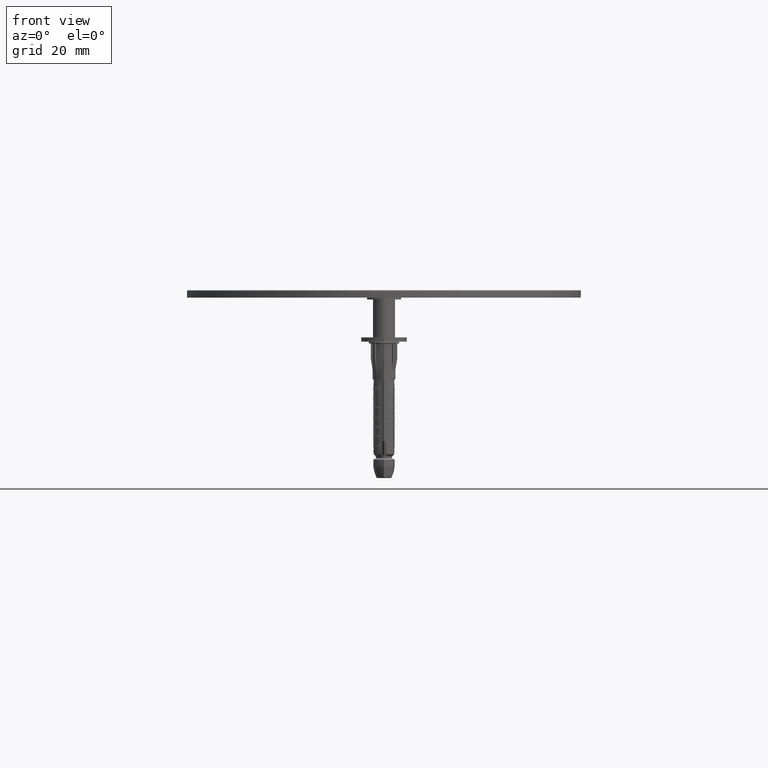
[diagram: clean part render]
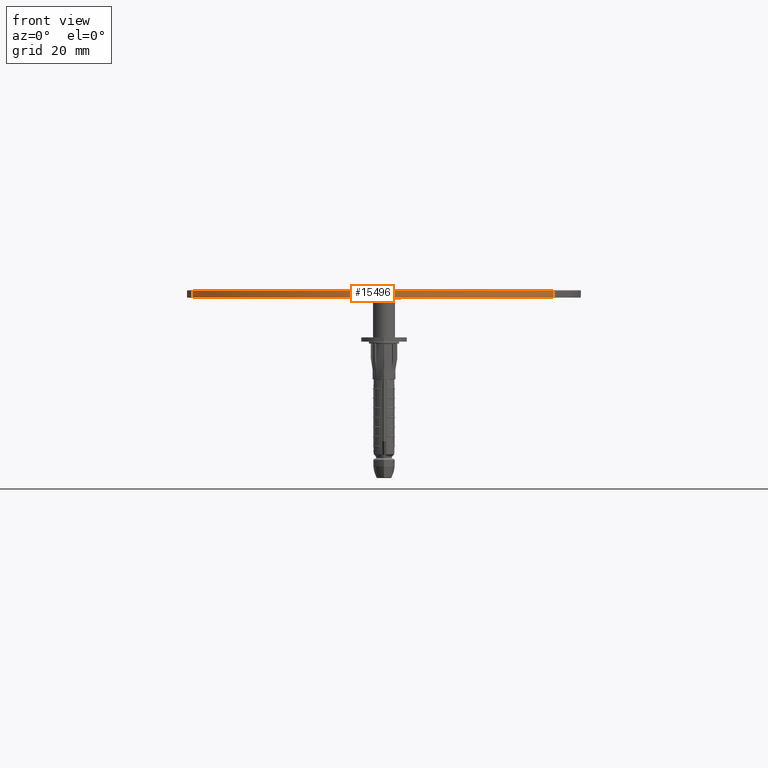
[diagram: same view with one face highlighted and labeled with its STEP entity id]
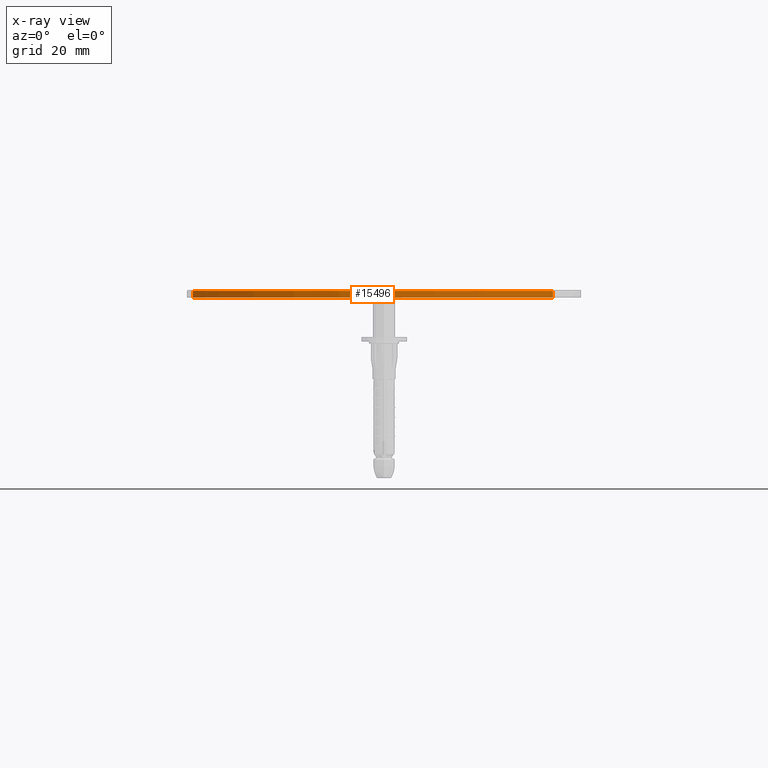
[diagram: x-ray of the same camera — body ghosted, the highlighted face saturated]
A machine part, front view. The second image highlights one B-rep face of the part: STEP entity #15496.
The next image is the same camera in x-ray: the body ghosted, the highlighted face saturated — about 0% of this face is hidden behind the body in this view.
In plain terms, the highlighted cylindrical surface (partial cylindrical patch) has radius 56.3458 mm, axis along (-0, -0, -1).
Its self-contained STEP definition (entity closure, byte-faithful):
#1110 = AXIS2_PLACEMENT_3D ( 'NONE', #38652, #20656, #11729 ) ;
#4083 = VECTOR ( 'NONE', #32666, 1000.000000000000000 ) ;
#4492 = DIRECTION ( 'NONE',  ( 0.000000000000000000, 0.000000000000000000, 1.000000000000000000 ) ) ;
#6666 = DIRECTION ( 'NONE',  ( -0.000000000000000000, -0.000000000000000000, -1.000000000000000000 ) ) ;
#6999 = CARTESIAN_POINT ( 'NONE',  ( -50.49529359084203151, 31.34424737922929083, 1.750000000000000000 ) ) ;
#7882 = CARTESIAN_POINT ( 'NONE',  ( -50.49529359084203151, 31.34424737922929083, 0.000000000000000000 ) ) ;
#8749 = VERTEX_POINT ( 'NONE', #27418 ) ;
#9643 = VERTEX_POINT ( 'NONE', #25786 ) ;
#10514 = EDGE_CURVE ( 'NONE', #18628, #9643, #12498, .T. ) ;
#11287 = LINE ( 'NONE', #23707, #4083 ) ;
#11467 = DIRECTION ( 'NONE',  ( -0.000000000000000000, -0.000000000000000000, -1.000000000000000000 ) ) ;
#11509 = ORIENTED_EDGE ( 'NONE', *, *, #10514, .T. ) ;
#11729 = DIRECTION ( 'NONE',  ( 1.000000000000000000, 0.000000000000000000, 0.000000000000000000 ) ) ;
#12498 = CIRCLE ( 'NONE', #16809, 56.34584993953851750 ) ;
#12601 = EDGE_CURVE ( 'NONE', #8749, #17269, #28280, .T. ) ;
#14001 = EDGE_CURVE ( 'NONE', #8749, #9643, #11287, .T. ) ;
#15496 = ADVANCED_FACE ( 'NONE', ( #19932 ), #24738, .T. ) ;
#16673 = AXIS2_PLACEMENT_3D ( 'NONE', #30957, #6666, #30701 ) ;
#16809 = AXIS2_PLACEMENT_3D ( 'NONE', #19470, #4492, #31641 ) ;
#17269 = VERTEX_POINT ( 'NONE', #6999 ) ;
#18628 = VERTEX_POINT ( 'NONE', #7882 ) ;
#19470 = CARTESIAN_POINT ( 'NONE',  ( 0.000000000000000000, 56.34584993953850329, 0.000000000000000000 ) ) ;
#19932 = FACE_OUTER_BOUND ( 'NONE', #21242, .T. ) ;
#20656 = DIRECTION ( 'NONE',  ( -0.000000000000000000, -0.000000000000000000, -1.000000000000000000 ) ) ;
#21242 = EDGE_LOOP ( 'NONE', ( #33081, #32543, #22428, #11509 ) ) ;
#21534 = VECTOR ( 'NONE', #11467, 1000.000000000000000 ) ;
#22255 = EDGE_CURVE ( 'NONE', #17269, #18628, #26318, .T. ) ;
#22428 = ORIENTED_EDGE ( 'NONE', *, *, #22255, .T. ) ;
#23707 = CARTESIAN_POINT ( 'NONE',  ( 44.53617309672562641, 21.82941774692210046, 2.000000000000000000 ) ) ;
#24738 = CYLINDRICAL_SURFACE ( 'NONE', #16673, 56.34584993953851750 ) ;
#25786 = CARTESIAN_POINT ( 'NONE',  ( 44.53617309672562641, 21.82941774692210046, 0.000000000000000000 ) ) ;
#26318 = LINE ( 'NONE', #28814, #21534 ) ;
#27418 = CARTESIAN_POINT ( 'NONE',  ( 44.53617309672562641, 21.82941774692210046, 1.750000000000000000 ) ) ;
#28280 = CIRCLE ( 'NONE', #1110, 56.34584993953851750 ) ;
#28814 = CARTESIAN_POINT ( 'NONE',  ( -50.49529359084203151, 31.34424737922929083, 2.000000000000000000 ) ) ;
#30701 = DIRECTION ( 'NONE',  ( -1.000000000000000000, 0.000000000000000000, 0.000000000000000000 ) ) ;
#30957 = CARTESIAN_POINT ( 'NONE',  ( 0.000000000000000000, 56.34584993953850329, 2.000000000000000000 ) ) ;
#31641 = DIRECTION ( 'NONE',  ( 1.000000000000000000, 0.000000000000000000, 0.000000000000000000 ) ) ;
#32543 = ORIENTED_EDGE ( 'NONE', *, *, #12601, .T. ) ;
#32666 = DIRECTION ( 'NONE',  ( -0.000000000000000000, -0.000000000000000000, -1.000000000000000000 ) ) ;
#33081 = ORIENTED_EDGE ( 'NONE', *, *, #14001, .F. ) ;
#38652 = CARTESIAN_POINT ( 'NONE',  ( 0.000000000000000000, 56.34584993953850329, 1.750000000000000000 ) ) ;